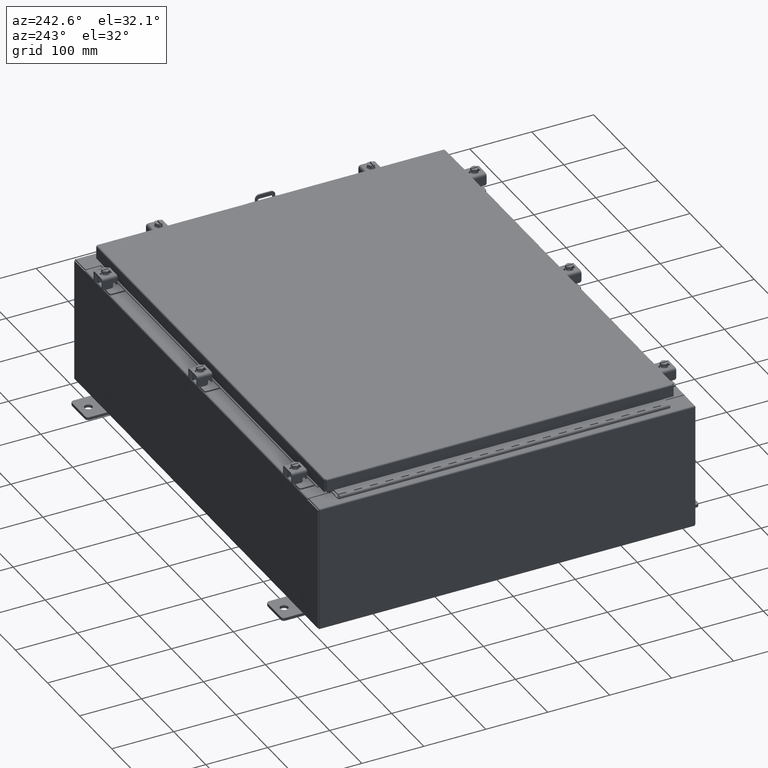
[diagram: clean part render]
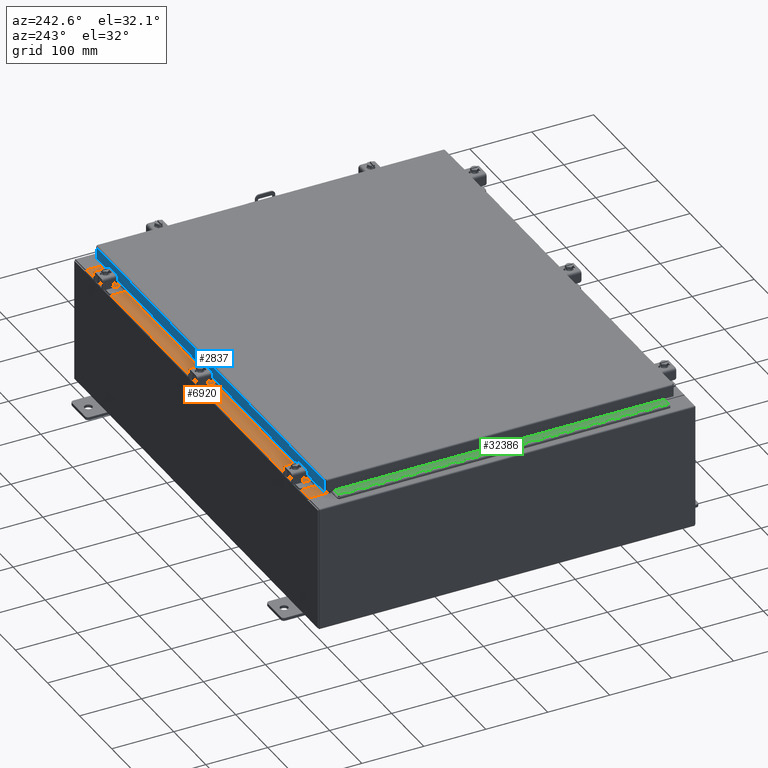
[diagram: same view with three faces highlighted in distinct colors, each labeled with its STEP entity id]
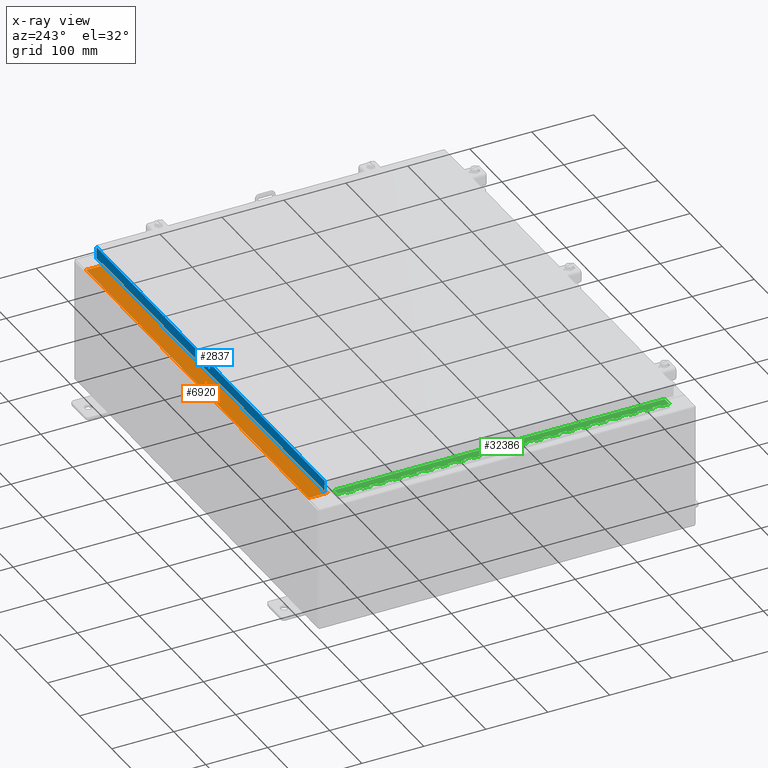
[diagram: x-ray of the same camera — body ghosted, the three highlighted faces saturated]
A machine part, auxiliary view with three faces highlighted in distinct colors.
The next image is the same camera in x-ray (body ghosted, the three faces saturated) — at least one of them is partly hidden behind the body in this view.
Their STEP definitions:

[orange] entity #6920 — the highlighted planar face has unit normal (0, 0, 1).
#652 = VECTOR ( 'NONE', #22955, 39.37007874015748100 ) ;
#1883 = CARTESIAN_POINT ( 'NONE',  ( 0.0000000000000000000, 1.425992975200418500E-014, 4.000000000000000000 ) ) ;
#4395 = DIRECTION ( 'NONE',  ( 0.0000000000000000000, 3.566381192773190000E-015, 1.000000000000000000 ) ) ;
#5611 = AXIS2_PLACEMENT_3D ( 'NONE', #1883, #4395, #22013 ) ;
#6423 = CARTESIAN_POINT ( 'NONE',  ( -13.63719999999999800, -0.07469999999999973900, 4.000000000000000000 ) ) ;
#6920 = ADVANCED_FACE ( 'NONE', ( #24083 ), #19454, .T. ) ;
#7188 = VERTEX_POINT ( 'NONE', #12847 ) ;
#7303 = LINE ( 'NONE', #7864, #652 ) ;
#7864 = CARTESIAN_POINT ( 'NONE',  ( 13.63720000000000400, -1.300299999999999800, 4.000000000000004400 ) ) ;
#8309 = CARTESIAN_POINT ( 'NONE',  ( 13.63720000000000400, -1.287299999999999900, 4.000000000000004400 ) ) ;
#8941 = DIRECTION ( 'NONE',  ( -0.0000000000000000000, 1.000000000000000000, -3.566381192773190000E-015 ) ) ;
#9105 = VECTOR ( 'NONE', #8941, 39.37007874015748100 ) ;
#9790 = VERTEX_POINT ( 'NONE', #8309 ) ;
#10670 = ORIENTED_EDGE ( 'NONE', *, *, #26959, .F. ) ;
#11139 = DIRECTION ( 'NONE',  ( -1.000000000000000000, 0.0000000000000000000, 0.0000000000000000000 ) ) ;
#12847 = CARTESIAN_POINT ( 'NONE',  ( 13.63720000000000400, -0.08769999999999965300, 4.000000000000000000 ) ) ;
#13478 = CARTESIAN_POINT ( 'NONE',  ( -13.63719999999999800, -0.08770000000000000000, 4.000000000000000000 ) ) ;
#14699 = VERTEX_POINT ( 'NONE', #13478 ) ;
#15131 = EDGE_CURVE ( 'NONE', #7188, #9790, #7303, .T. ) ;
#15764 = LINE ( 'NONE', #6423, #9105 ) ;
#15849 = VECTOR ( 'NONE', #11139, 39.37007874015748100 ) ;
#17206 = EDGE_CURVE ( 'NONE', #7188, #14699, #24688, .T. ) ;
#18114 = VERTEX_POINT ( 'NONE', #24829 ) ;
#19454 = PLANE ( 'NONE',  #5611 ) ;
#19603 = CARTESIAN_POINT ( 'NONE',  ( -1.756834753793995900E-018, -0.08770000000000000000, 4.000000000000000900 ) ) ;
#20675 = EDGE_LOOP ( 'NONE', ( #10670, #22113, #32286, #26658 ) ) ;
#21808 = LINE ( 'NONE', #28689, #15849 ) ;
#22013 = DIRECTION ( 'NONE',  ( 0.0000000000000000000, -1.000000000000000000, 3.566381192773190000E-015 ) ) ;
#22113 = ORIENTED_EDGE ( 'NONE', *, *, #24669, .F. ) ;
#22955 = DIRECTION ( 'NONE',  ( -0.0000000000000000000, -1.000000000000000000, 3.566381192773190000E-015 ) ) ;
#24083 = FACE_OUTER_BOUND ( 'NONE', #20675, .T. ) ;
#24669 = EDGE_CURVE ( 'NONE', #9790, #18114, #21808, .T. ) ;
#24688 = LINE ( 'NONE', #19603, #30560 ) ;
#24829 = CARTESIAN_POINT ( 'NONE',  ( -13.63719999999999800, -1.287299999999999200, 4.000000000000004400 ) ) ;
#26658 = ORIENTED_EDGE ( 'NONE', *, *, #17206, .T. ) ;
#26959 = EDGE_CURVE ( 'NONE', #18114, #14699, #15764, .T. ) ;
#28689 = CARTESIAN_POINT ( 'NONE',  ( 13.63720000000000400, -1.287299999999999900, 4.000000000000003600 ) ) ;
#30560 = VECTOR ( 'NONE', #32118, 39.37007874015748100 ) ;
#32118 = DIRECTION ( 'NONE',  ( -1.000000000000000000, 2.003232330437526000E-017, -7.144290108027600900E-032 ) ) ;
#32286 = ORIENTED_EDGE ( 'NONE', *, *, #15131, .F. ) ;

[blue] entity #2837 — the highlighted planar face has unit normal (0, -1, -0).
#816 = DIRECTION ( 'NONE',  ( 1.000000000000000000, -0.0000000000000000000, 1.261330583805775800E-016 ) ) ;
#2108 = VECTOR ( 'NONE', #816, 39.37007874015748100 ) ;
#2413 = VECTOR ( 'NONE', #25703, 39.37007874015748100 ) ;
#2560 = CARTESIAN_POINT ( 'NONE',  ( -13.98915786437626500, 11.09399999999999900, -0.08770000000000115200 ) ) ;
#2656 = EDGE_CURVE ( 'NONE', #9721, #26998, #28348, .T. ) ;
#2837 = ADVANCED_FACE ( 'NONE', ( #32110 ), #13784, .F. ) ;
#2856 = AXIS2_PLACEMENT_3D ( 'NONE', #11395, #28948, #13897 ) ;
#2977 = ORIENTED_EDGE ( 'NONE', *, *, #10481, .F. ) ;
#3062 = VERTEX_POINT ( 'NONE', #15081 ) ;
#4248 = ORIENTED_EDGE ( 'NONE', *, *, #2656, .T. ) ;
#6306 = EDGE_CURVE ( 'NONE', #3062, #14914, #32341, .T. ) ;
#7556 = CARTESIAN_POINT ( 'NONE',  ( -14.07799999999999800, 11.09400000000000100, -0.8500000000000032000 ) ) ;
#9721 = VERTEX_POINT ( 'NONE', #13029 ) ;
#10481 = EDGE_CURVE ( 'NONE', #31581, #3062, #22187, .T. ) ;
#11395 = CARTESIAN_POINT ( 'NONE',  ( -3.944516902753746600E-030, 11.09399999999999900, 3.153347883512799900E-014 ) ) ;
#11591 = CARTESIAN_POINT ( 'NONE',  ( 13.98915786437627400, 11.09400000000000100, -0.8499999999999996400 ) ) ;
#11825 = ORIENTED_EDGE ( 'NONE', *, *, #15707, .F. ) ;
#13029 = CARTESIAN_POINT ( 'NONE',  ( 13.98915786437627400, 11.09399999999999900, -0.08770000000000224800 ) ) ;
#13308 = CARTESIAN_POINT ( 'NONE',  ( -14.07799999999999800, 11.09400000000000100, -0.8500000000000032000 ) ) ;
#13784 = PLANE ( 'NONE',  #2856 ) ;
#13897 = DIRECTION ( 'NONE',  ( 0.0000000000000000000, 2.818880942772347100E-015, -1.000000000000000000 ) ) ;
#14914 = VERTEX_POINT ( 'NONE', #21965 ) ;
#15081 = CARTESIAN_POINT ( 'NONE',  ( -13.23915786437626400, 11.09399999999999400, -0.8500000000000056400 ) ) ;
#15442 = EDGE_CURVE ( 'NONE', #17356, #31581, #31266, .T. ) ;
#15707 = EDGE_CURVE ( 'NONE', #9721, #17356, #19054, .T. ) ;
#17258 = ORIENTED_EDGE ( 'NONE', *, *, #20818, .F. ) ;
#17356 = VERTEX_POINT ( 'NONE', #2560 ) ;
#18074 = CARTESIAN_POINT ( 'NONE',  ( 13.98915786437627100, 11.09399999999999900, 3.153347883512799900E-014 ) ) ;
#18953 = CARTESIAN_POINT ( 'NONE',  ( -13.98915786437626500, 11.09400000000000100, -0.8500000000000032000 ) ) ;
#18968 = VECTOR ( 'NONE', #29725, 39.37007874015748100 ) ;
#19054 = LINE ( 'NONE', #23258, #24995 ) ;
#19717 = CARTESIAN_POINT ( 'NONE',  ( -13.98915786437626500, 11.09399999999999900, -0.07469999999999978000 ) ) ;
#19731 = LINE ( 'NONE', #7556, #26442 ) ;
#20818 = EDGE_CURVE ( 'NONE', #14914, #26998, #19731, .T. ) ;
#21965 = CARTESIAN_POINT ( 'NONE',  ( 13.23915786437627200, 11.09399999999999400, -0.8500000000000056400 ) ) ;
#22187 = LINE ( 'NONE', #13308, #2108 ) ;
#22275 = DIRECTION ( 'NONE',  ( -0.0000000000000000000, 2.818880942772347100E-015, -1.000000000000000000 ) ) ;
#23119 = EDGE_LOOP ( 'NONE', ( #11825, #4248, #17258, #25491, #2977, #30424 ) ) ;
#23258 = CARTESIAN_POINT ( 'NONE',  ( -14.07799999999999800, 11.09399999999999900, -0.08770000000000007000 ) ) ;
#24605 = VECTOR ( 'NONE', #22275, 39.37007874015748100 ) ;
#24995 = VECTOR ( 'NONE', #28257, 39.37007874015748100 ) ;
#25151 = DIRECTION ( 'NONE',  ( 1.000000000000000000, -0.0000000000000000000, 1.261330583805775800E-016 ) ) ;
#25491 = ORIENTED_EDGE ( 'NONE', *, *, #6306, .F. ) ;
#25703 = DIRECTION ( 'NONE',  ( 0.0000000000000000000, 2.818880942772347100E-015, -1.000000000000000000 ) ) ;
#26442 = VECTOR ( 'NONE', #25151, 39.37007874015748100 ) ;
#26998 = VERTEX_POINT ( 'NONE', #11591 ) ;
#27233 = CARTESIAN_POINT ( 'NONE',  ( -13.23915786437626400, 11.09399999999999400, -0.8500000000000056400 ) ) ;
#28257 = DIRECTION ( 'NONE',  ( -1.000000000000000000, -5.743565819211262900E-031, 7.762034361881697200E-017 ) ) ;
#28348 = LINE ( 'NONE', #18074, #2413 ) ;
#28948 = DIRECTION ( 'NONE',  ( 3.555540745226020000E-031, -1.000000000000000000, -2.818880942772347100E-015 ) ) ;
#29725 = DIRECTION ( 'NONE',  ( 1.000000000000000000, -0.0000000000000000000, -0.0000000000000000000 ) ) ;
#30424 = ORIENTED_EDGE ( 'NONE', *, *, #15442, .F. ) ;
#31266 = LINE ( 'NONE', #19717, #24605 ) ;
#31581 = VERTEX_POINT ( 'NONE', #18953 ) ;
#32110 = FACE_OUTER_BOUND ( 'NONE', #23119, .T. ) ;
#32341 = LINE ( 'NONE', #27233, #18968 ) ;

[green] entity #32386 — the highlighted planar face has unit normal (-0, -0, 1).
#23 = DIRECTION ( 'NONE',  ( -3.389037039080723100E-015, -1.000000000000000000, 0.0000000000000000000 ) ) ;
#56 = DIRECTION ( 'NONE',  ( 0.0000000000000000000, 0.0000000000000000000, 1.000000000000000000 ) ) ;
#79 = VERTEX_POINT ( 'NONE', #11323 ) ;
#98 = VECTOR ( 'NONE', #32406, 39.37007874015748100 ) ;
#196 = LINE ( 'NONE', #5729, #6057 ) ;
#227 = LINE ( 'NONE', #21262, #32029 ) ;
#376 = EDGE_CURVE ( 'NONE', #79, #24054, #24597, .T. ) ;
#379 = VERTEX_POINT ( 'NONE', #7458 ) ;
#400 = CARTESIAN_POINT ( 'NONE',  ( -0.6869999999999982800, 0.5504999999999997700, -9.500000000000000000 ) ) ;
#433 = CARTESIAN_POINT ( 'NONE',  ( -0.6869999999999978300, 0.6754999999999996600, -1.499999999999999800 ) ) ;
#472 = DIRECTION ( 'NONE',  ( 0.0000000000000000000, 0.0000000000000000000, 1.000000000000000000 ) ) ;
#511 = CARTESIAN_POINT ( 'NONE',  ( -0.6869999999999978300, 0.6754999999999996600, -14.49999999999999800 ) ) ;
#513 = VERTEX_POINT ( 'NONE', #30508 ) ;
#712 = VERTEX_POINT ( 'NONE', #13787 ) ;
#713 = CARTESIAN_POINT ( 'NONE',  ( -0.6869999999999982800, 0.5504999999999997700, -2.000000000000000000 ) ) ;
#781 = LINE ( 'NONE', #20731, #25934 ) ;
#862 = LINE ( 'NONE', #20971, #12634 ) ;
#865 = CARTESIAN_POINT ( 'NONE',  ( -0.6869999999999978300, 0.6754999999999996600, -21.00000000000000000 ) ) ;
#972 = LINE ( 'NONE', #23129, #14308 ) ;
#1145 = CARTESIAN_POINT ( 'NONE',  ( -0.6869999999999978300, 0.6754999999999996600, -1.000000000000000000 ) ) ;
#1225 = VERTEX_POINT ( 'NONE', #16834 ) ;
#1239 = CARTESIAN_POINT ( 'NONE',  ( -0.6869999999999978300, 0.6754999999999996600, -21.00000000000000000 ) ) ;
#1246 = VECTOR ( 'NONE', #56, 39.37007874015748100 ) ;
#1251 = CARTESIAN_POINT ( 'NONE',  ( -0.6869999999999978300, 0.6754999999999996600, -12.49999999999999800 ) ) ;
#1276 = EDGE_CURVE ( 'NONE', #10729, #2779, #26118, .T. ) ;
#1370 = CARTESIAN_POINT ( 'NONE',  ( -0.6869999999999982800, 0.5504999999999997700, -18.50000000000000000 ) ) ;
#1372 = CARTESIAN_POINT ( 'NONE',  ( -0.6869999999999973900, 0.8004999999999995500, -12.99999999999999800 ) ) ;
#1376 = VECTOR ( 'NONE', #12643, 39.37007874015748100 ) ;
#1380 = VERTEX_POINT ( 'NONE', #2454 ) ;
#1423 = EDGE_CURVE ( 'NONE', #8209, #24475, #22183, .T. ) ;
#1430 = ORIENTED_EDGE ( 'NONE', *, *, #21750, .F. ) ;
#1507 = VERTEX_POINT ( 'NONE', #5641 ) ;
#1519 = CARTESIAN_POINT ( 'NONE',  ( -0.6869999999999982800, 0.5504999999999997700, -11.50000000000000000 ) ) ;
#1529 = CARTESIAN_POINT ( 'NONE',  ( -0.6869999999999982800, 0.5504999999999997700, -9.000000000000000000 ) ) ;
#1540 = DIRECTION ( 'NONE',  ( 0.0000000000000000000, -0.0000000000000000000, -1.000000000000000000 ) ) ;
#1580 = DIRECTION ( 'NONE',  ( 0.0000000000000000000, -0.0000000000000000000, -1.000000000000000000 ) ) ;
#1614 = VERTEX_POINT ( 'NONE', #13416 ) ;
#1645 = LINE ( 'NONE', #15866, #26804 ) ;
#1733 = VERTEX_POINT ( 'NONE', #16260 ) ;
#1773 = LINE ( 'NONE', #1372, #7671 ) ;
#1794 = EDGE_CURVE ( 'NONE', #26939, #31734, #11902, .T. ) ;
#1800 = LINE ( 'NONE', #16191, #27746 ) ;
#1938 = CARTESIAN_POINT ( 'NONE',  ( -0.6869999999999978300, 0.6754999999999996600, -21.00000000000000000 ) ) ;
#1956 = DIRECTION ( 'NONE',  ( 0.0000000000000000000, -0.0000000000000000000, -1.000000000000000000 ) ) ;
#2012 = DIRECTION ( 'NONE',  ( 3.389037039080723100E-015, 1.000000000000000000, -0.0000000000000000000 ) ) ;
#2020 = LINE ( 'NONE', #2961, #22100 ) ;
#2033 = ORIENTED_EDGE ( 'NONE', *, *, #23609, .F. ) ;
#2039 = VERTEX_POINT ( 'NONE', #13078 ) ;
#2172 = ORIENTED_EDGE ( 'NONE', *, *, #5055, .F. ) ;
#2173 = EDGE_CURVE ( 'NONE', #17864, #2235, #22536, .T. ) ;
#2235 = VERTEX_POINT ( 'NONE', #31410 ) ;
#2401 = ORIENTED_EDGE ( 'NONE', *, *, #7018, .F. ) ;
#2449 = CARTESIAN_POINT ( 'NONE',  ( -0.6869999999999973900, 0.8004999999999995500, -0.5000000000000000000 ) ) ;
#2454 = CARTESIAN_POINT ( 'NONE',  ( -0.6869999999999978300, 0.6754999999999996600, -9.000000000000000000 ) ) ;
#2455 = VERTEX_POINT ( 'NONE', #7340 ) ;
#2526 = ORIENTED_EDGE ( 'NONE', *, *, #9353, .F. ) ;
#2602 = VECTOR ( 'NONE', #21884, 39.37007874015748100 ) ;
#2704 = VECTOR ( 'NONE', #26336, 39.37007874015748100 ) ;
#2705 = EDGE_CURVE ( 'NONE', #12238, #11594, #1645, .T. ) ;
#2748 = EDGE_CURVE ( 'NONE', #18402, #2235, #862, .T. ) ;
#2779 = VERTEX_POINT ( 'NONE', #6107 ) ;
#2870 = ORIENTED_EDGE ( 'NONE', *, *, #28009, .F. ) ;
#2898 = CARTESIAN_POINT ( 'NONE',  ( -0.6869999999999978300, 0.6754999999999996600, -5.000000000000000000 ) ) ;
#2903 = LINE ( 'NONE', #1239, #15463 ) ;
#2907 = VECTOR ( 'NONE', #26619, 39.37007874015748100 ) ;
#2961 = CARTESIAN_POINT ( 'NONE',  ( -0.6869999999999982800, 0.5504999999999997700, -3.500000000000000000 ) ) ;
#2992 = VERTEX_POINT ( 'NONE', #27315 ) ;
#3015 = VECTOR ( 'NONE', #15557, 39.37007874015748100 ) ;
#3074 = VECTOR ( 'NONE', #2012, 39.37007874015748100 ) ;
#3085 = ORIENTED_EDGE ( 'NONE', *, *, #2173, .T. ) ;
#3195 = DIRECTION ( 'NONE',  ( 3.389037039080723100E-015, 1.000000000000000000, -0.0000000000000000000 ) ) ;
#3202 = DIRECTION ( 'NONE',  ( -3.389037039080723100E-015, -1.000000000000000000, 0.0000000000000000000 ) ) ;
#3222 = LINE ( 'NONE', #24407, #29159 ) ;
#3276 = EDGE_CURVE ( 'NONE', #21090, #28404, #15168, .T. ) ;
#3292 = DIRECTION ( 'NONE',  ( 0.0000000000000000000, -0.0000000000000000000, -1.000000000000000000 ) ) ;
#3305 = CARTESIAN_POINT ( 'NONE',  ( -0.6869999999999982800, 0.5504999999999997700, -1.499999999999999800 ) ) ;
#3334 = ORIENTED_EDGE ( 'NONE', *, *, #30977, .T. ) ;
#3367 = DIRECTION ( 'NONE',  ( 3.369016658928398200E-015, 1.000000000000000000, 0.0000000000000000000 ) ) ;
#3497 = CARTESIAN_POINT ( 'NONE',  ( -0.6869999999999998300, 0.07549999999999991400, 0.0000000000000000000 ) ) ;
#3522 = DIRECTION ( 'NONE',  ( 3.389037039080723100E-015, 1.000000000000000000, -0.0000000000000000000 ) ) ;
#3549 = VECTOR ( 'NONE', #26409, 39.37007874015748100 ) ;
#3567 = CARTESIAN_POINT ( 'NONE',  ( -0.6869999999999978300, 0.6754999999999996600, -5.500000000000000000 ) ) ;
#3570 = VERTEX_POINT ( 'NONE', #17338 ) ;
#3645 = LINE ( 'NONE', #4939, #29584 ) ;
#3692 = LINE ( 'NONE', #9016, #17030 ) ;
#3792 = VERTEX_POINT ( 'NONE', #8909 ) ;
#3808 = VERTEX_POINT ( 'NONE', #24099 ) ;
#3816 = ORIENTED_EDGE ( 'NONE', *, *, #5692, .T. ) ;
#3819 = VERTEX_POINT ( 'NONE', #29220 ) ;
#3830 = VERTEX_POINT ( 'NONE', #24202 ) ;
#3993 = CARTESIAN_POINT ( 'NONE',  ( -0.6869999999999982800, 0.5504999999999997700, -4.500000000000000000 ) ) ;
#4096 = EDGE_CURVE ( 'NONE', #12378, #28245, #6494, .T. ) ;
#4121 = LINE ( 'NONE', #30357, #30061 ) ;
#4127 = VECTOR ( 'NONE', #10315, 39.37007874015748100 ) ;
#4142 = DIRECTION ( 'NONE',  ( 3.389037039080723100E-015, 1.000000000000000000, -0.0000000000000000000 ) ) ;
#4146 = EDGE_CURVE ( 'NONE', #29577, #22393, #17469, .T. ) ;
#4184 = VECTOR ( 'NONE', #18842, 39.37007874015748100 ) ;
#4226 = ORIENTED_EDGE ( 'NONE', *, *, #5477, .F. ) ;
#4279 = CARTESIAN_POINT ( 'NONE',  ( -0.6869999999999973900, 0.8004999999999995500, -14.00000000000000000 ) ) ;
#4320 = ORIENTED_EDGE ( 'NONE', *, *, #13380, .F. ) ;
#4354 = ORIENTED_EDGE ( 'NONE', *, *, #30456, .F. ) ;
#4404 = VERTEX_POINT ( 'NONE', #6122 ) ;
#4445 = VERTEX_POINT ( 'NONE', #28967 ) ;
#4508 = EDGE_CURVE ( 'NONE', #24717, #28529, #9277, .T. ) ;
#4517 = EDGE_CURVE ( 'NONE', #1733, #23282, #21882, .T. ) ;
#4561 = EDGE_CURVE ( 'NONE', #16801, #26397, #14368, .T. ) ;
#4611 = DIRECTION ( 'NONE',  ( 3.389037039080723100E-015, 1.000000000000000000, -0.0000000000000000000 ) ) ;
#4629 = DIRECTION ( 'NONE',  ( 0.0000000000000000000, 0.0000000000000000000, 1.000000000000000000 ) ) ;
#4676 = DIRECTION ( 'NONE',  ( 0.0000000000000000000, -0.0000000000000000000, -1.000000000000000000 ) ) ;
#4726 = VECTOR ( 'NONE', #5902, 39.37007874015748100 ) ;
#4747 = VECTOR ( 'NONE', #20050, 39.37007874015748100 ) ;
#4801 = VECTOR ( 'NONE', #18992, 39.37007874015748100 ) ;
#4857 = EDGE_CURVE ( 'NONE', #17498, #12178, #19865, .T. ) ;
#4912 = LINE ( 'NONE', #7524, #30854 ) ;
#4939 = CARTESIAN_POINT ( 'NONE',  ( -0.6869999999999982800, 0.5504999999999997700, -8.500000000000000000 ) ) ;
#4975 = ORIENTED_EDGE ( 'NONE', *, *, #5545, .F. ) ;
#5026 = CARTESIAN_POINT ( 'NONE',  ( -0.6869999999999978300, 0.6754999999999996600, -12.99999999999999800 ) ) ;
#5048 = LINE ( 'NONE', #7497, #10939 ) ;
#5055 = EDGE_CURVE ( 'NONE', #19191, #3792, #227, .T. ) ;
#5162 = EDGE_CURVE ( 'NONE', #3819, #12893, #23808, .T. ) ;
#5293 = DIRECTION ( 'NONE',  ( 0.0000000000000000000, 0.0000000000000000000, 1.000000000000000000 ) ) ;
#5328 = CARTESIAN_POINT ( 'NONE',  ( -0.6869999999999982800, 0.5504999999999997700, -16.00000000000000000 ) ) ;
#5375 = CARTESIAN_POINT ( 'NONE',  ( -0.6869999999999978300, 0.6754999999999996600, -6.000000000000000900 ) ) ;
#5477 = EDGE_CURVE ( 'NONE', #28245, #3808, #972, .T. ) ;
#5545 = EDGE_CURVE ( 'NONE', #3570, #1507, #196, .T. ) ;
#5577 = VERTEX_POINT ( 'NONE', #18335 ) ;
#5641 = CARTESIAN_POINT ( 'NONE',  ( -0.6869999999999978300, 0.6754999999999996600, -8.000000000000000000 ) ) ;
#5666 = CARTESIAN_POINT ( 'NONE',  ( -0.6869999999999973900, 0.8004999999999995500, -16.00000000000000000 ) ) ;
#5692 = EDGE_CURVE ( 'NONE', #3819, #12178, #2903, .T. ) ;
#5729 = CARTESIAN_POINT ( 'NONE',  ( -0.6869999999999973900, 0.8004999999999995500, -8.000000000000000000 ) ) ;
#5763 = DIRECTION ( 'NONE',  ( -3.389037039080723100E-015, -1.000000000000000000, 0.0000000000000000000 ) ) ;
#5899 = VERTEX_POINT ( 'NONE', #14817 ) ;
#5902 = DIRECTION ( 'NONE',  ( 0.0000000000000000000, 0.0000000000000000000, 1.000000000000000000 ) ) ;
#5977 = ORIENTED_EDGE ( 'NONE', *, *, #26405, .T. ) ;
#6057 = VECTOR ( 'NONE', #3195, 39.37007874015748100 ) ;
#6069 = EDGE_CURVE ( 'NONE', #4404, #19191, #19383, .T. ) ;
#6107 = CARTESIAN_POINT ( 'NONE',  ( -0.6869999999999978300, 0.6754999999999996600, -16.00000000000000000 ) ) ;
#6122 = CARTESIAN_POINT ( 'NONE',  ( -0.6869999999999978300, 0.6754999999999996600, -18.50000000000000000 ) ) ;
#6188 = DIRECTION ( 'NONE',  ( 0.0000000000000000000, -0.0000000000000000000, -1.000000000000000000 ) ) ;
#6222 = VERTEX_POINT ( 'NONE', #26911 ) ;
#6296 = CARTESIAN_POINT ( 'NONE',  ( -0.6869999999999982800, 0.5504999999999997700, -15.50000000000000000 ) ) ;
#6444 = VERTEX_POINT ( 'NONE', #22718 ) ;
#6494 = LINE ( 'NONE', #27585, #25775 ) ;
#6517 = DIRECTION ( 'NONE',  ( 0.0000000000000000000, -0.0000000000000000000, -1.000000000000000000 ) ) ;
#6664 = CARTESIAN_POINT ( 'NONE',  ( -0.6869999999999973900, 0.8004999999999995500, -17.50000000000000000 ) ) ;
#6805 = DIRECTION ( 'NONE',  ( 3.389037039080723100E-015, 1.000000000000000000, -0.0000000000000000000 ) ) ;
#6860 = LINE ( 'NONE', #16578, #14329 ) ;
#6869 = EDGE_CURVE ( 'NONE', #23867, #9892, #11486, .T. ) ;
#6939 = CARTESIAN_POINT ( 'NONE',  ( -0.6869999999999982800, 0.5504999999999997700, -0.5000000000000000000 ) ) ;
#6971 = EDGE_CURVE ( 'NONE', #8370, #6444, #14208, .T. ) ;
#7018 = EDGE_CURVE ( 'NONE', #13318, #17588, #26820, .T. ) ;
#7052 = CARTESIAN_POINT ( 'NONE',  ( -0.6869999999999973900, 0.8004999999999995500, -11.99999999999999800 ) ) ;
#7167 = DIRECTION ( 'NONE',  ( 0.0000000000000000000, -0.0000000000000000000, -1.000000000000000000 ) ) ;
#7178 = EDGE_CURVE ( 'NONE', #22512, #1733, #2020, .T. ) ;
#7291 = VECTOR ( 'NONE', #9104, 39.37007874015748100 ) ;
#7340 = CARTESIAN_POINT ( 'NONE',  ( -0.6869999999999982800, 0.5504999999999997700, -20.50000000000000400 ) ) ;
#7365 = EDGE_CURVE ( 'NONE', #12367, #3570, #25628, .T. ) ;
#7458 = CARTESIAN_POINT ( 'NONE',  ( -0.6869999999999982800, 0.5504999999999997700, -9.500000000000000000 ) ) ;
#7497 = CARTESIAN_POINT ( 'NONE',  ( -0.6869999999999978300, 0.6754999999999996600, -21.00000000000000000 ) ) ;
#7524 = CARTESIAN_POINT ( 'NONE',  ( -0.6869999999999973900, 0.8004999999999995500, -10.50000000000000000 ) ) ;
#7542 = CARTESIAN_POINT ( 'NONE',  ( -0.6869999999999982800, 0.5504999999999997700, -17.50000000000000000 ) ) ;
#7568 = LINE ( 'NONE', #6664, #25275 ) ;
#7571 = LINE ( 'NONE', #19738, #23332 ) ;
#7649 = VECTOR ( 'NONE', #3522, 39.37007874015748100 ) ;
#7671 = VECTOR ( 'NONE', #24004, 39.37007874015748100 ) ;
#7674 = CARTESIAN_POINT ( 'NONE',  ( -0.6869999999999982800, 0.5504999999999997700, -20.00000000000000000 ) ) ;
#7700 = ORIENTED_EDGE ( 'NONE', *, *, #7365, .F. ) ;
#7722 = VERTEX_POINT ( 'NONE', #13041 ) ;
#7731 = VECTOR ( 'NONE', #11824, 39.37007874015748100 ) ;
#7732 = VECTOR ( 'NONE', #28478, 39.37007874015748100 ) ;
#7747 = ORIENTED_EDGE ( 'NONE', *, *, #6971, .F. ) ;
#7803 = CARTESIAN_POINT ( 'NONE',  ( -0.6869999999999978300, 0.6754999999999996600, -21.00000000000000000 ) ) ;
#7804 = EDGE_CURVE ( 'NONE', #16462, #2455, #12211, .T. ) ;
#7817 = EDGE_CURVE ( 'NONE', #4445, #23282, #18078, .T. ) ;
#7820 = ORIENTED_EDGE ( 'NONE', *, *, #28627, .F. ) ;
#7844 = DIRECTION ( 'NONE',  ( 0.0000000000000000000, 0.0000000000000000000, 1.000000000000000000 ) ) ;
#7878 = VERTEX_POINT ( 'NONE', #18607 ) ;
#7887 = LINE ( 'NONE', #4279, #27932 ) ;
#7951 = LINE ( 'NONE', #14896, #28762 ) ;
#7964 = CARTESIAN_POINT ( 'NONE',  ( -0.6869999999999978300, 0.6754999999999996600, -21.00000000000000000 ) ) ;
#8047 = DIRECTION ( 'NONE',  ( 0.0000000000000000000, -0.0000000000000000000, -1.000000000000000000 ) ) ;
#8196 = DIRECTION ( 'NONE',  ( -3.389037039080723100E-015, -1.000000000000000000, 0.0000000000000000000 ) ) ;
#8209 = VERTEX_POINT ( 'NONE', #17706 ) ;
#8266 = VECTOR ( 'NONE', #22992, 39.37007874015748100 ) ;
#8325 = CARTESIAN_POINT ( 'NONE',  ( -0.6869999999999982800, 0.5504999999999997700, -16.50000000000000000 ) ) ;
#8344 = VECTOR ( 'NONE', #4611, 39.37007874015748100 ) ;
#8370 = VERTEX_POINT ( 'NONE', #30900 ) ;
#8439 = DIRECTION ( 'NONE',  ( 3.389037039080723100E-015, 1.000000000000000000, -0.0000000000000000000 ) ) ;
#8465 = ORIENTED_EDGE ( 'NONE', *, *, #22710, .F. ) ;
#8504 = ORIENTED_EDGE ( 'NONE', *, *, #10450, .F. ) ;
#8561 = CARTESIAN_POINT ( 'NONE',  ( -0.6869999999999978300, 0.6754999999999996600, -17.50000000000000000 ) ) ;
#8588 = VERTEX_POINT ( 'NONE', #26743 ) ;
#8616 = VECTOR ( 'NONE', #5763, 39.37007874015748100 ) ;
#8663 = EDGE_CURVE ( 'NONE', #17593, #9645, #21209, .T. ) ;
#8682 = DIRECTION ( 'NONE',  ( 0.0000000000000000000, 0.0000000000000000000, 1.000000000000000000 ) ) ;
#8737 = VECTOR ( 'NONE', #23168, 39.37007874015748100 ) ;
#8775 = DIRECTION ( 'NONE',  ( -3.389037039080723100E-015, -1.000000000000000000, 0.0000000000000000000 ) ) ;
#8794 = VECTOR ( 'NONE', #12464, 39.37007874015748100 ) ;
#8797 = LINE ( 'NONE', #18236, #28053 ) ;
#8820 = CARTESIAN_POINT ( 'NONE',  ( -0.6869999999999978300, 0.6754999999999996600, -21.00000000000000000 ) ) ;
#8835 = VECTOR ( 'NONE', #16598, 39.37007874015748100 ) ;
#8906 = EDGE_CURVE ( 'NONE', #5577, #3830, #14877, .T. ) ;
#8909 = CARTESIAN_POINT ( 'NONE',  ( -0.6869999999999982800, 0.5504999999999997700, -19.00000000000000000 ) ) ;
#8958 = LINE ( 'NONE', #8988, #21563 ) ;
#8988 = CARTESIAN_POINT ( 'NONE',  ( -0.6869999999999973900, 0.8004999999999995500, -9.000000000000000000 ) ) ;
#9011 = EDGE_CURVE ( 'NONE', #28404, #5899, #17607, .T. ) ;
#9016 = CARTESIAN_POINT ( 'NONE',  ( -0.6869999999999978300, 0.6754999999999996600, -21.00000000000000000 ) ) ;
#9060 = EDGE_CURVE ( 'NONE', #12238, #22280, #9378, .T. ) ;
#9104 = DIRECTION ( 'NONE',  ( 3.389037039080723100E-015, 1.000000000000000000, -0.0000000000000000000 ) ) ;
#9119 = CARTESIAN_POINT ( 'NONE',  ( -0.6869999999999982800, 0.5504999999999997700, -7.499999999999999100 ) ) ;
#9181 = ORIENTED_EDGE ( 'NONE', *, *, #5162, .F. ) ;
#9240 = EDGE_CURVE ( 'NONE', #2455, #11594, #12119, .T. ) ;
#9277 = LINE ( 'NONE', #14132, #28518 ) ;
#9296 = LINE ( 'NONE', #16761, #2602 ) ;
#9353 = EDGE_CURVE ( 'NONE', #22422, #1380, #8958, .T. ) ;
#9378 = LINE ( 'NONE', #28544, #21979 ) ;
#9480 = ORIENTED_EDGE ( 'NONE', *, *, #6869, .F. ) ;
#9492 = EDGE_CURVE ( 'NONE', #18359, #32504, #25101, .T. ) ;
#9516 = ORIENTED_EDGE ( 'NONE', *, *, #1794, .T. ) ;
#9631 = ORIENTED_EDGE ( 'NONE', *, *, #11518, .T. ) ;
#9645 = VERTEX_POINT ( 'NONE', #5026 ) ;
#9662 = CARTESIAN_POINT ( 'NONE',  ( -0.6870000000000022800, -0.6245000000000003900, -21.00000000000000000 ) ) ;
#9699 = VERTEX_POINT ( 'NONE', #433 ) ;
#9730 = ORIENTED_EDGE ( 'NONE', *, *, #32289, .F. ) ;
#9766 = VECTOR ( 'NONE', #6517, 39.37007874015748100 ) ;
#9804 = CARTESIAN_POINT ( 'NONE',  ( -0.6869999999999978300, 0.6754999999999996600, -11.00000000000000000 ) ) ;
#9840 = CARTESIAN_POINT ( 'NONE',  ( -0.6869999999999978300, 0.6754999999999996600, -21.00000000000000000 ) ) ;
#9865 = DIRECTION ( 'NONE',  ( -3.389037039080723100E-015, -1.000000000000000000, 0.0000000000000000000 ) ) ;
#9892 = VERTEX_POINT ( 'NONE', #11154 ) ;
#9937 = ORIENTED_EDGE ( 'NONE', *, *, #22025, .F. ) ;
#9966 = VERTEX_POINT ( 'NONE', #11482 ) ;
#10196 = CARTESIAN_POINT ( 'NONE',  ( -0.6869999999999982800, 0.5504999999999997700, -14.00000000000000000 ) ) ;
#10315 = DIRECTION ( 'NONE',  ( 0.0000000000000000000, 0.0000000000000000000, 1.000000000000000000 ) ) ;
#10450 = EDGE_CURVE ( 'NONE', #31211, #22512, #8797, .T. ) ;
#10692 = ORIENTED_EDGE ( 'NONE', *, *, #4561, .F. ) ;
#10729 = VERTEX_POINT ( 'NONE', #29439 ) ;
#10748 = DIRECTION ( 'NONE',  ( -3.389037039080723100E-015, -1.000000000000000000, 0.0000000000000000000 ) ) ;
#10836 = VECTOR ( 'NONE', #13356, 39.37007874015748100 ) ;
#10839 = CARTESIAN_POINT ( 'NONE',  ( -0.6869999999999982800, 0.5504999999999997700, -14.99999999999999800 ) ) ;
#10840 = DIRECTION ( 'NONE',  ( -3.389037039080723100E-015, -1.000000000000000000, 0.0000000000000000000 ) ) ;
#10875 = LINE ( 'NONE', #11293, #4184 ) ;
#10882 = EDGE_CURVE ( 'NONE', #24475, #22422, #3645, .T. ) ;
#10883 = ORIENTED_EDGE ( 'NONE', *, *, #29031, .T. ) ;
#10923 = DIRECTION ( 'NONE',  ( 0.0000000000000000000, 0.0000000000000000000, 1.000000000000000000 ) ) ;
#10939 = VECTOR ( 'NONE', #17574, 39.37007874015748100 ) ;
#11016 = ORIENTED_EDGE ( 'NONE', *, *, #23341, .F. ) ;
#11154 = CARTESIAN_POINT ( 'NONE',  ( -0.6869999999999978300, 0.6754999999999996600, -20.00000000000000000 ) ) ;
#11174 = ORIENTED_EDGE ( 'NONE', *, *, #26504, .F. ) ;
#11207 = EDGE_CURVE ( 'NONE', #26227, #379, #15795, .T. ) ;
#11290 = VECTOR ( 'NONE', #27010, 39.37007874015748100 ) ;
#11293 = CARTESIAN_POINT ( 'NONE',  ( -0.6869999999999978300, 0.6754999999999996600, -21.00000000000000000 ) ) ;
#11323 = CARTESIAN_POINT ( 'NONE',  ( -0.6869999999999978300, 0.6754999999999996600, -6.499999999999999100 ) ) ;
#11325 = EDGE_CURVE ( 'NONE', #29577, #22684, #7568, .T. ) ;
#11380 = CARTESIAN_POINT ( 'NONE',  ( -0.6869999999999982800, 0.5504999999999997700, -6.499999999999999100 ) ) ;
#11448 = LINE ( 'NONE', #2449, #4747 ) ;
#11482 = CARTESIAN_POINT ( 'NONE',  ( -0.6869999999999982800, 0.5504999999999997700, -0.5000000000000000000 ) ) ;
#11486 = LINE ( 'NONE', #29229, #19742 ) ;
#11518 = EDGE_CURVE ( 'NONE', #13318, #27872, #13819, .T. ) ;
#11522 = DIRECTION ( 'NONE',  ( 3.389037039080723100E-015, 1.000000000000000000, -0.0000000000000000000 ) ) ;
#11594 = VERTEX_POINT ( 'NONE', #30717 ) ;
#11665 = DIRECTION ( 'NONE',  ( 3.389037039080723100E-015, 1.000000000000000000, -0.0000000000000000000 ) ) ;
#11773 = ORIENTED_EDGE ( 'NONE', *, *, #20809, .T. ) ;
#11815 = VECTOR ( 'NONE', #13943, 39.37007874015748100 ) ;
#11824 = DIRECTION ( 'NONE',  ( 3.369016658928398200E-015, 1.000000000000000000, 0.0000000000000000000 ) ) ;
#11902 = LINE ( 'NONE', #19685, #25305 ) ;
#12070 = VECTOR ( 'NONE', #28900, 39.37007874015748100 ) ;
#12119 = LINE ( 'NONE', #21653, #24705 ) ;
#12177 = EDGE_CURVE ( 'NONE', #23543, #2039, #22469, .T. ) ;
#12178 = VERTEX_POINT ( 'NONE', #20368 ) ;
#12195 = PLANE ( 'NONE',  #19470 ) ;
#12211 = LINE ( 'NONE', #25918, #24808 ) ;
#12230 = CARTESIAN_POINT ( 'NONE',  ( -0.6869999999999982800, 0.5504999999999997700, -12.99999999999999800 ) ) ;
#12238 = VERTEX_POINT ( 'NONE', #15599 ) ;
#12239 = VECTOR ( 'NONE', #28642, 39.37007874015748100 ) ;
#12283 = ORIENTED_EDGE ( 'NONE', *, *, #18021, .F. ) ;
#12367 = VERTEX_POINT ( 'NONE', #9119 ) ;
#12378 = VERTEX_POINT ( 'NONE', #19669 ) ;
#12413 = CARTESIAN_POINT ( 'NONE',  ( -0.6869999999999978300, 0.6754999999999996600, -3.500000000000000000 ) ) ;
#12464 = DIRECTION ( 'NONE',  ( -3.389037039080723100E-015, -1.000000000000000000, 0.0000000000000000000 ) ) ;
#12488 = CARTESIAN_POINT ( 'NONE',  ( -0.6869999999999973900, 0.8004999999999995500, -15.50000000000000000 ) ) ;
#12527 = DIRECTION ( 'NONE',  ( 0.0000000000000000000, -0.0000000000000000000, -1.000000000000000000 ) ) ;
#12542 = VERTEX_POINT ( 'NONE', #5375 ) ;
#12592 = DIRECTION ( 'NONE',  ( -3.389037039080723100E-015, -1.000000000000000000, 0.0000000000000000000 ) ) ;
#12634 = VECTOR ( 'NONE', #8439, 39.37007874015748100 ) ;
#12640 = LINE ( 'NONE', #11380, #31102 ) ;
#12643 = DIRECTION ( 'NONE',  ( 0.0000000000000000000, -0.0000000000000000000, -1.000000000000000000 ) ) ;
#12762 = CARTESIAN_POINT ( 'NONE',  ( -0.6869999999999978300, 0.6754999999999996600, -21.00000000000000000 ) ) ;
#12832 = CARTESIAN_POINT ( 'NONE',  ( -0.6869999999999978300, 0.6754999999999996600, -21.00000000000000000 ) ) ;
#12869 = ORIENTED_EDGE ( 'NONE', *, *, #13246, .F. ) ;
#12893 = VERTEX_POINT ( 'NONE', #19410 ) ;
#12989 = VERTEX_POINT ( 'NONE', #22193 ) ;
#13001 = DIRECTION ( 'NONE',  ( 0.0000000000000000000, 0.0000000000000000000, 1.000000000000000000 ) ) ;
#13036 = CARTESIAN_POINT ( 'NONE',  ( -0.6869999999999982800, 0.5504999999999997700, -5.000000000000000000 ) ) ;
#13041 = CARTESIAN_POINT ( 'NONE',  ( -0.6869999999999982800, 0.5504999999999997700, -17.99999999999999600 ) ) ;
#13078 = CARTESIAN_POINT ( 'NONE',  ( -0.6869999999999978300, 0.6754999999999996600, -11.99999999999999800 ) ) ;
#13161 = CARTESIAN_POINT ( 'NONE',  ( -0.6869999999999982800, 0.5504999999999997700, -14.49999999999999800 ) ) ;
#13246 = EDGE_CURVE ( 'NONE', #10729, #25693, #781, .T. ) ;
#13281 = EDGE_CURVE ( 'NONE', #28529, #2779, #19215, .T. ) ;
#13306 = VECTOR ( 'NONE', #472, 39.37007874015748100 ) ;
#13318 = VERTEX_POINT ( 'NONE', #15955 ) ;
#13352 = LINE ( 'NONE', #13161, #18434 ) ;
#13356 = DIRECTION ( 'NONE',  ( 0.0000000000000000000, -0.0000000000000000000, -1.000000000000000000 ) ) ;
#13380 = EDGE_CURVE ( 'NONE', #17593, #18359, #29427, .T. ) ;
#13416 = CARTESIAN_POINT ( 'NONE',  ( -0.6869999999999982800, 0.5504999999999997700, -12.49999999999999800 ) ) ;
#13589 = CARTESIAN_POINT ( 'NONE',  ( -0.6869999999999982800, 0.5504999999999997700, -7.499999999999999100 ) ) ;
#13592 = ORIENTED_EDGE ( 'NONE', *, *, #17644, .T. ) ;
#13609 = EDGE_CURVE ( 'NONE', #3808, #2039, #22378, .T. ) ;
#13692 = VECTOR ( 'NONE', #10923, 39.37007874015748100 ) ;
#13787 = CARTESIAN_POINT ( 'NONE',  ( -0.6869999999999982800, 0.5504999999999997700, -1.000000000000000000 ) ) ;
#13819 = LINE ( 'NONE', #9840, #19727 ) ;
#13943 = DIRECTION ( 'NONE',  ( 3.389037039080723100E-015, 1.000000000000000000, -0.0000000000000000000 ) ) ;
#13965 = LINE ( 'NONE', #26711, #7291 ) ;
#14132 = CARTESIAN_POINT ( 'NONE',  ( -0.6869999999999982800, 0.5504999999999997700, -15.50000000000000000 ) ) ;
#14208 = LINE ( 'NONE', #22230, #8344 ) ;
#14308 = VECTOR ( 'NONE', #8047, 39.37007874015748100 ) ;
#14329 = VECTOR ( 'NONE', #1580, 39.37007874015748100 ) ;
#14368 = LINE ( 'NONE', #24270, #20293 ) ;
#14443 = CARTESIAN_POINT ( 'NONE',  ( -0.6869999999999978300, 0.6754999999999996600, -7.000000000000000000 ) ) ;
#14578 = EDGE_CURVE ( 'NONE', #7722, #6222, #16357, .T. ) ;
#14660 = CARTESIAN_POINT ( 'NONE',  ( -0.6869999999999978300, 0.6754999999999996600, -2.999999999999999600 ) ) ;
#14712 = DIRECTION ( 'NONE',  ( 3.369016658928398200E-015, 1.000000000000000000, 0.0000000000000000000 ) ) ;
#14744 = ORIENTED_EDGE ( 'NONE', *, *, #26726, .F. ) ;
#14784 = EDGE_CURVE ( 'NONE', #16462, #9892, #10875, .T. ) ;
#14817 = CARTESIAN_POINT ( 'NONE',  ( -0.6869999999999982800, 0.5504999999999997700, -6.000000000000000900 ) ) ;
#14877 = LINE ( 'NONE', #30533, #13306 ) ;
#14896 = CARTESIAN_POINT ( 'NONE',  ( -0.6869999999999978300, 0.6754999999999996600, -21.00000000000000000 ) ) ;
#14902 = EDGE_CURVE ( 'NONE', #22280, #3830, #21904, .T. ) ;
#15060 = CARTESIAN_POINT ( 'NONE',  ( -0.6869999999999978300, 0.6754999999999996600, -21.00000000000000000 ) ) ;
#15168 = LINE ( 'NONE', #25985, #7732 ) ;
#15267 = LINE ( 'NONE', #28378, #13692 ) ;
#15387 = LINE ( 'NONE', #20630, #8737 ) ;
#15409 = CARTESIAN_POINT ( 'NONE',  ( -0.6869999999999982800, 0.5504999999999997700, -8.500000000000000000 ) ) ;
#15441 = VERTEX_POINT ( 'NONE', #14660 ) ;
#15463 = VECTOR ( 'NONE', #21335, 39.37007874015748100 ) ;
#15490 = ORIENTED_EDGE ( 'NONE', *, *, #12177, .T. ) ;
#15557 = DIRECTION ( 'NONE',  ( 3.389037039080723100E-015, 1.000000000000000000, -0.0000000000000000000 ) ) ;
#15599 = CARTESIAN_POINT ( 'NONE',  ( -0.6869999999999998300, 0.07549999999999991400, -21.00000000000000000 ) ) ;
#15795 = LINE ( 'NONE', #26367, #28381 ) ;
#15797 = VECTOR ( 'NONE', #16948, 39.37007874015748100 ) ;
#15861 = EDGE_CURVE ( 'NONE', #30511, #9645, #1773, .T. ) ;
#15866 = CARTESIAN_POINT ( 'NONE',  ( -0.6870000000000022800, -0.6245000000000003900, -21.00000000000000000 ) ) ;
#15904 = EDGE_CURVE ( 'NONE', #8588, #7878, #6860, .T. ) ;
#15955 = CARTESIAN_POINT ( 'NONE',  ( -0.6869999999999978300, 0.6754999999999996600, -19.50000000000000000 ) ) ;
#15969 = ORIENTED_EDGE ( 'NONE', *, *, #8906, .T. ) ;
#15990 = ORIENTED_EDGE ( 'NONE', *, *, #3276, .F. ) ;
#16019 = ORIENTED_EDGE ( 'NONE', *, *, #13609, .F. ) ;
#16148 = EDGE_CURVE ( 'NONE', #12893, #2992, #26542, .T. ) ;
#16191 = CARTESIAN_POINT ( 'NONE',  ( -0.6869999999999973900, 0.8004999999999995500, -6.000000000000000900 ) ) ;
#16253 = LINE ( 'NONE', #31635, #2907 ) ;
#16260 = CARTESIAN_POINT ( 'NONE',  ( -0.6869999999999982800, 0.5504999999999997700, -4.000000000000000000 ) ) ;
#16357 = LINE ( 'NONE', #30628, #3015 ) ;
#16390 = DIRECTION ( 'NONE',  ( 0.0000000000000000000, -0.0000000000000000000, -1.000000000000000000 ) ) ;
#16462 = VERTEX_POINT ( 'NONE', #19202 ) ;
#16578 = CARTESIAN_POINT ( 'NONE',  ( -0.6869999999999982800, 0.5504999999999997700, -10.50000000000000000 ) ) ;
#16598 = DIRECTION ( 'NONE',  ( -3.389037039080723100E-015, -1.000000000000000000, 0.0000000000000000000 ) ) ;
#16761 = CARTESIAN_POINT ( 'NONE',  ( -0.6869999999999973900, 0.8004999999999995500, -12.49999999999999800 ) ) ;
#16801 = VERTEX_POINT ( 'NONE', #13036 ) ;
#16811 = ORIENTED_EDGE ( 'NONE', *, *, #20466, .T. ) ;
#16821 = ORIENTED_EDGE ( 'NONE', *, *, #27686, .F. ) ;
#16834 = CARTESIAN_POINT ( 'NONE',  ( -0.6869999999999978300, 0.6754999999999996600, -10.50000000000000000 ) ) ;
#16836 = VECTOR ( 'NONE', #12592, 39.37007874015748100 ) ;
#16948 = DIRECTION ( 'NONE',  ( 0.0000000000000000000, 0.0000000000000000000, 1.000000000000000000 ) ) ;
#16970 = CARTESIAN_POINT ( 'NONE',  ( -0.6869999999999982800, 0.5504999999999997700, -13.50000000000000000 ) ) ;
#17030 = VECTOR ( 'NONE', #24090, 39.37007874015748100 ) ;
#17088 = CARTESIAN_POINT ( 'NONE',  ( -0.6869999999999982800, 0.5504999999999997700, -17.00000000000000000 ) ) ;
#17266 = LINE ( 'NONE', #20114, #29871 ) ;
#17338 = CARTESIAN_POINT ( 'NONE',  ( -0.6869999999999982800, 0.5504999999999997700, -8.000000000000000000 ) ) ;
#17364 = LINE ( 'NONE', #7964, #29174 ) ;
#17449 = ORIENTED_EDGE ( 'NONE', *, *, #13281, .F. ) ;
#17469 = LINE ( 'NONE', #7803, #4127 ) ;
#17498 = VERTEX_POINT ( 'NONE', #713 ) ;
#17574 = DIRECTION ( 'NONE',  ( 0.0000000000000000000, 0.0000000000000000000, 1.000000000000000000 ) ) ;
#17588 = VERTEX_POINT ( 'NONE', #21132 ) ;
#17593 = VERTEX_POINT ( 'NONE', #28674 ) ;
#17607 = LINE ( 'NONE', #30756, #30196 ) ;
#17644 = EDGE_CURVE ( 'NONE', #26412, #26821, #18721, .T. ) ;
#17684 = LINE ( 'NONE', #31528, #11815 ) ;
#17692 = EDGE_LOOP ( 'NONE', ( #27291, #22764, #25468, #29152, #20931, #9480, #19167, #2401, #9631, #9937, #2172, #22805, #16811, #20996, #9730, #32485, #23515, #2033, #29109, #12869, #29512, #17449, #17775, #8465, #3085, #23934, #2870, #23513, #13592, #16821, #28343, #4320, #26643, #23255, #11174, #12283, #15490, #16019, #4226, #29189, #31317, #1430, #27064, #27948, #30655, #7747, #11016, #31590, #5977, #2526, #28994, #23905, #23715, #4975, #7700, #7820, #9516, #31031, #27385, #30650, #19392, #19714, #28838, #15990, #10883, #10692, #18683, #14744, #23699, #23292, #18813, #8504, #11773, #19783, #20108, #9181, #3816, #17915, #30322, #25801, #3334, #26174, #4354, #25137, #15969, #25547 ) ) ;
#17706 = CARTESIAN_POINT ( 'NONE',  ( -0.6869999999999978300, 0.6754999999999996600, -8.500000000000000000 ) ) ;
#17716 = LINE ( 'NONE', #24771, #31101 ) ;
#17775 = ORIENTED_EDGE ( 'NONE', *, *, #4508, .F. ) ;
#17822 = DIRECTION ( 'NONE',  ( 0.0000000000000000000, -0.0000000000000000000, -1.000000000000000000 ) ) ;
#17864 = VERTEX_POINT ( 'NONE', #27708 ) ;
#17915 = ORIENTED_EDGE ( 'NONE', *, *, #4857, .F. ) ;
#18021 = EDGE_CURVE ( 'NONE', #23543, #1614, #9296, .T. ) ;
#18078 = LINE ( 'NONE', #865, #4726 ) ;
#18083 = VERTEX_POINT ( 'NONE', #17088 ) ;
#18192 = LINE ( 'NONE', #12762, #32360 ) ;
#18236 = CARTESIAN_POINT ( 'NONE',  ( -0.6869999999999973900, 0.8004999999999995500, -3.500000000000000000 ) ) ;
#18335 = CARTESIAN_POINT ( 'NONE',  ( -0.6869999999999978300, 0.6754999999999996600, -0.5000000000000000000 ) ) ;
#18359 = VERTEX_POINT ( 'NONE', #30723 ) ;
#18360 = VECTOR ( 'NONE', #1956, 39.37007874015748100 ) ;
#18402 = VERTEX_POINT ( 'NONE', #10839 ) ;
#18403 = EDGE_CURVE ( 'NONE', #25693, #18083, #30879, .T. ) ;
#18407 = VECTOR ( 'NONE', #28387, 39.37007874015748100 ) ;
#18434 = VECTOR ( 'NONE', #23203, 39.37007874015748100 ) ;
#18470 = CARTESIAN_POINT ( 'NONE',  ( -0.6869999999999982800, 0.5504999999999997700, -4.500000000000000000 ) ) ;
#18481 = EDGE_CURVE ( 'NONE', #5899, #12542, #1800, .T. ) ;
#18522 = DIRECTION ( 'NONE',  ( 0.0000000000000000000, 0.0000000000000000000, 1.000000000000000000 ) ) ;
#18543 = CARTESIAN_POINT ( 'NONE',  ( -0.6869999999999973900, 0.8004999999999995500, -2.999999999999999600 ) ) ;
#18607 = CARTESIAN_POINT ( 'NONE',  ( -0.6869999999999982800, 0.5504999999999997700, -11.00000000000000000 ) ) ;
#18683 = ORIENTED_EDGE ( 'NONE', *, *, #28827, .F. ) ;
#18712 = DIRECTION ( 'NONE',  ( 3.389037039080723100E-015, 1.000000000000000000, -0.0000000000000000000 ) ) ;
#18721 = LINE ( 'NONE', #8820, #12070 ) ;
#18813 = ORIENTED_EDGE ( 'NONE', *, *, #7178, .F. ) ;
#18842 = DIRECTION ( 'NONE',  ( 0.0000000000000000000, 0.0000000000000000000, 1.000000000000000000 ) ) ;
#18844 = EDGE_CURVE ( 'NONE', #1225, #8588, #4912, .T. ) ;
#18886 = EDGE_CURVE ( 'NONE', #17588, #23867, #4121, .T. ) ;
#18962 = CARTESIAN_POINT ( 'NONE',  ( -0.6869999999999978300, 0.6754999999999996600, -17.00000000000000000 ) ) ;
#18992 = DIRECTION ( 'NONE',  ( 3.389037039080723100E-015, 1.000000000000000000, -0.0000000000000000000 ) ) ;
#19167 = ORIENTED_EDGE ( 'NONE', *, *, #18886, .F. ) ;
#19179 = CARTESIAN_POINT ( 'NONE',  ( -0.6870000000000022800, -0.6245000000000003900, 0.0000000000000000000 ) ) ;
#19191 = VERTEX_POINT ( 'NONE', #1370 ) ;
#19202 = CARTESIAN_POINT ( 'NONE',  ( -0.6869999999999978300, 0.6754999999999996600, -20.50000000000000400 ) ) ;
#19215 = LINE ( 'NONE', #5666, #18407 ) ;
#19226 = LINE ( 'NONE', #400, #31806 ) ;
#19383 = LINE ( 'NONE', #20760, #31968 ) ;
#19392 = ORIENTED_EDGE ( 'NONE', *, *, #25095, .T. ) ;
#19410 = CARTESIAN_POINT ( 'NONE',  ( -0.6869999999999982800, 0.5504999999999997700, -2.500000000000000000 ) ) ;
#19455 = VECTOR ( 'NONE', #32003, 39.37007874015748100 ) ;
#19470 = AXIS2_PLACEMENT_3D ( 'NONE', #9662, #29748, #14712 ) ;
#19495 = CARTESIAN_POINT ( 'NONE',  ( -0.6869999999999978300, 0.6754999999999996600, -21.00000000000000000 ) ) ;
#19669 = CARTESIAN_POINT ( 'NONE',  ( -0.6869999999999978300, 0.6754999999999996600, -11.50000000000000000 ) ) ;
#19685 = CARTESIAN_POINT ( 'NONE',  ( -0.6869999999999978300, 0.6754999999999996600, -21.00000000000000000 ) ) ;
#19714 = ORIENTED_EDGE ( 'NONE', *, *, #18481, .F. ) ;
#19727 = VECTOR ( 'NONE', #27433, 39.37007874015748100 ) ;
#19738 = CARTESIAN_POINT ( 'NONE',  ( -0.6869999999999982800, 0.5504999999999997700, -12.49999999999999800 ) ) ;
#19742 = VECTOR ( 'NONE', #11665, 39.37007874015748100 ) ;
#19783 = ORIENTED_EDGE ( 'NONE', *, *, #30849, .F. ) ;
#19865 = LINE ( 'NONE', #20508, #25001 ) ;
#19988 = CARTESIAN_POINT ( 'NONE',  ( -0.6869999999999973900, 0.8004999999999995500, -6.499999999999999100 ) ) ;
#20050 = DIRECTION ( 'NONE',  ( -3.389037039080723100E-015, -1.000000000000000000, 0.0000000000000000000 ) ) ;
#20108 = ORIENTED_EDGE ( 'NONE', *, *, #16148, .F. ) ;
#20114 = CARTESIAN_POINT ( 'NONE',  ( -0.6869999999999973900, 0.8004999999999995500, -19.00000000000000000 ) ) ;
#20164 = DIRECTION ( 'NONE',  ( -3.389037039080723100E-015, -1.000000000000000000, 0.0000000000000000000 ) ) ;
#20217 = CARTESIAN_POINT ( 'NONE',  ( -0.6869999999999978300, 0.6754999999999996600, -19.00000000000000000 ) ) ;
#20260 = LINE ( 'NONE', #6939, #19455 ) ;
#20270 = CARTESIAN_POINT ( 'NONE',  ( -0.6869999999999973900, 0.8004999999999995500, -8.500000000000000000 ) ) ;
#20293 = VECTOR ( 'NONE', #24381, 39.37007874015748100 ) ;
#20368 = CARTESIAN_POINT ( 'NONE',  ( -0.6869999999999978300, 0.6754999999999996600, -2.000000000000000000 ) ) ;
#20466 = EDGE_CURVE ( 'NONE', #4404, #6222, #28386, .T. ) ;
#20508 = CARTESIAN_POINT ( 'NONE',  ( -0.6869999999999973900, 0.8004999999999995500, -2.000000000000000000 ) ) ;
#20563 = DIRECTION ( 'NONE',  ( 0.0000000000000000000, -0.0000000000000000000, -1.000000000000000000 ) ) ;
#20630 = CARTESIAN_POINT ( 'NONE',  ( -0.6869999999999973900, 0.8004999999999995500, -4.500000000000000000 ) ) ;
#20718 = CARTESIAN_POINT ( 'NONE',  ( -0.6869999999999973900, 0.8004999999999995500, -7.499999999999999100 ) ) ;
#20731 = CARTESIAN_POINT ( 'NONE',  ( -0.6869999999999973900, 0.8004999999999995500, -16.50000000000000000 ) ) ;
#20760 = CARTESIAN_POINT ( 'NONE',  ( -0.6869999999999973900, 0.8004999999999995500, -18.50000000000000000 ) ) ;
#20809 = EDGE_CURVE ( 'NONE', #31211, #15441, #7951, .T. ) ;
#20851 = LINE ( 'NONE', #12832, #8266 ) ;
#20931 = ORIENTED_EDGE ( 'NONE', *, *, #14784, .T. ) ;
#20971 = CARTESIAN_POINT ( 'NONE',  ( -0.6869999999999973900, 0.8004999999999995500, -14.99999999999999800 ) ) ;
#20996 = ORIENTED_EDGE ( 'NONE', *, *, #14578, .F. ) ;
#21022 = LINE ( 'NONE', #18543, #7649 ) ;
#21090 = VERTEX_POINT ( 'NONE', #3567 ) ;
#21132 = CARTESIAN_POINT ( 'NONE',  ( -0.6869999999999982800, 0.5504999999999997700, -19.50000000000000000 ) ) ;
#21155 = EDGE_CURVE ( 'NONE', #24054, #12989, #12640, .T. ) ;
#21209 = LINE ( 'NONE', #27059, #27107 ) ;
#21218 = CARTESIAN_POINT ( 'NONE',  ( -0.6869999999999978300, 0.6754999999999996600, -21.00000000000000000 ) ) ;
#21262 = CARTESIAN_POINT ( 'NONE',  ( -0.6869999999999982800, 0.5504999999999997700, -18.50000000000000000 ) ) ;
#21335 = DIRECTION ( 'NONE',  ( 0.0000000000000000000, 0.0000000000000000000, 1.000000000000000000 ) ) ;
#21436 = EDGE_CURVE ( 'NONE', #5577, #9966, #11448, .T. ) ;
#21563 = VECTOR ( 'NONE', #11522, 39.37007874015748100 ) ;
#21653 = CARTESIAN_POINT ( 'NONE',  ( -0.6869999999999982800, 0.5504999999999997700, -20.50000000000000400 ) ) ;
#21750 = EDGE_CURVE ( 'NONE', #7878, #30520, #23645, .T. ) ;
#21882 = LINE ( 'NONE', #26693, #27753 ) ;
#21884 = DIRECTION ( 'NONE',  ( -3.389037039080723100E-015, -1.000000000000000000, 0.0000000000000000000 ) ) ;
#21904 = LINE ( 'NONE', #19179, #7731 ) ;
#21979 = VECTOR ( 'NONE', #18522, 39.37007874015748100 ) ;
#22025 = EDGE_CURVE ( 'NONE', #3792, #27872, #17266, .T. ) ;
#22100 = VECTOR ( 'NONE', #20563, 39.37007874015748100 ) ;
#22183 = LINE ( 'NONE', #20270, #8794 ) ;
#22193 = CARTESIAN_POINT ( 'NONE',  ( -0.6869999999999982800, 0.5504999999999997700, -7.000000000000000000 ) ) ;
#22230 = CARTESIAN_POINT ( 'NONE',  ( -0.6869999999999973900, 0.8004999999999995500, -10.00000000000000000 ) ) ;
#22280 = VERTEX_POINT ( 'NONE', #3497 ) ;
#22378 = LINE ( 'NONE', #7052, #3074 ) ;
#22393 = VERTEX_POINT ( 'NONE', #18962 ) ;
#22396 = CARTESIAN_POINT ( 'NONE',  ( -0.6869999999999982800, 0.5504999999999997700, -5.500000000000000000 ) ) ;
#22422 = VERTEX_POINT ( 'NONE', #1529 ) ;
#22469 = LINE ( 'NONE', #22926, #29112 ) ;
#22512 = VERTEX_POINT ( 'NONE', #31926 ) ;
#22530 = DIRECTION ( 'NONE',  ( 0.0000000000000000000, 0.0000000000000000000, 1.000000000000000000 ) ) ;
#22536 = LINE ( 'NONE', #21218, #23323 ) ;
#22668 = DIRECTION ( 'NONE',  ( 3.389037039080723100E-015, 1.000000000000000000, -0.0000000000000000000 ) ) ;
#22684 = VERTEX_POINT ( 'NONE', #7542 ) ;
#22710 = EDGE_CURVE ( 'NONE', #17864, #24717, #30217, .T. ) ;
#22718 = CARTESIAN_POINT ( 'NONE',  ( -0.6869999999999978300, 0.6754999999999996600, -10.00000000000000000 ) ) ;
#22764 = ORIENTED_EDGE ( 'NONE', *, *, #2705, .T. ) ;
#22805 = ORIENTED_EDGE ( 'NONE', *, *, #6069, .F. ) ;
#22926 = CARTESIAN_POINT ( 'NONE',  ( -0.6869999999999978300, 0.6754999999999996600, -21.00000000000000000 ) ) ;
#22992 = DIRECTION ( 'NONE',  ( 0.0000000000000000000, 0.0000000000000000000, 1.000000000000000000 ) ) ;
#23060 = DIRECTION ( 'NONE',  ( 3.389037039080723100E-015, 1.000000000000000000, -0.0000000000000000000 ) ) ;
#23129 = CARTESIAN_POINT ( 'NONE',  ( -0.6869999999999982800, 0.5504999999999997700, -11.50000000000000000 ) ) ;
#23168 = DIRECTION ( 'NONE',  ( -3.389037039080723100E-015, -1.000000000000000000, 0.0000000000000000000 ) ) ;
#23176 = LINE ( 'NONE', #3993, #9766 ) ;
#23203 = DIRECTION ( 'NONE',  ( 0.0000000000000000000, -0.0000000000000000000, -1.000000000000000000 ) ) ;
#23255 = ORIENTED_EDGE ( 'NONE', *, *, #15861, .F. ) ;
#23282 = VERTEX_POINT ( 'NONE', #30348 ) ;
#23292 = ORIENTED_EDGE ( 'NONE', *, *, #4517, .F. ) ;
#23323 = VECTOR ( 'NONE', #8682, 39.37007874015748100 ) ;
#23332 = VECTOR ( 'NONE', #4676, 39.37007874015748100 ) ;
#23341 = EDGE_CURVE ( 'NONE', #379, #8370, #19226, .T. ) ;
#23489 = VERTEX_POINT ( 'NONE', #1145 ) ;
#23506 = CARTESIAN_POINT ( 'NONE',  ( -0.6869999999999982800, 0.5504999999999997700, -6.499999999999999100 ) ) ;
#23513 = ORIENTED_EDGE ( 'NONE', *, *, #29785, .F. ) ;
#23515 = ORIENTED_EDGE ( 'NONE', *, *, #4146, .T. ) ;
#23543 = VERTEX_POINT ( 'NONE', #1251 ) ;
#23609 = EDGE_CURVE ( 'NONE', #18083, #22393, #13965, .T. ) ;
#23645 = LINE ( 'NONE', #23889, #3549 ) ;
#23699 = ORIENTED_EDGE ( 'NONE', *, *, #7817, .T. ) ;
#23715 = ORIENTED_EDGE ( 'NONE', *, *, #27922, .T. ) ;
#23808 = LINE ( 'NONE', #29248, #8835 ) ;
#23815 = CARTESIAN_POINT ( 'NONE',  ( -0.6869999999999973900, 0.8004999999999995500, -13.50000000000000000 ) ) ;
#23867 = VERTEX_POINT ( 'NONE', #7674 ) ;
#23889 = CARTESIAN_POINT ( 'NONE',  ( -0.6869999999999973900, 0.8004999999999995500, -11.00000000000000000 ) ) ;
#23905 = ORIENTED_EDGE ( 'NONE', *, *, #1423, .F. ) ;
#23920 = CARTESIAN_POINT ( 'NONE',  ( -0.6869999999999978300, 0.6754999999999996600, -7.499999999999999100 ) ) ;
#23934 = ORIENTED_EDGE ( 'NONE', *, *, #2748, .F. ) ;
#24004 = DIRECTION ( 'NONE',  ( 3.389037039080723100E-015, 1.000000000000000000, -0.0000000000000000000 ) ) ;
#24054 = VERTEX_POINT ( 'NONE', #23506 ) ;
#24090 = DIRECTION ( 'NONE',  ( 0.0000000000000000000, 0.0000000000000000000, 1.000000000000000000 ) ) ;
#24099 = CARTESIAN_POINT ( 'NONE',  ( -0.6869999999999982800, 0.5504999999999997700, -11.99999999999999800 ) ) ;
#24202 = CARTESIAN_POINT ( 'NONE',  ( -0.6869999999999978300, 0.6754999999999996600, 0.0000000000000000000 ) ) ;
#24269 = DIRECTION ( 'NONE',  ( -3.389037039080723100E-015, -1.000000000000000000, 0.0000000000000000000 ) ) ;
#24270 = CARTESIAN_POINT ( 'NONE',  ( -0.6869999999999973900, 0.8004999999999995500, -5.000000000000000000 ) ) ;
#24381 = DIRECTION ( 'NONE',  ( 3.389037039080723100E-015, 1.000000000000000000, -0.0000000000000000000 ) ) ;
#24407 = CARTESIAN_POINT ( 'NONE',  ( -0.6869999999999982800, 0.5504999999999997700, -17.50000000000000000 ) ) ;
#24475 = VERTEX_POINT ( 'NONE', #15409 ) ;
#24597 = LINE ( 'NONE', #19988, #30458 ) ;
#24705 = VECTOR ( 'NONE', #1540, 39.37007874015748100 ) ;
#24717 = VERTEX_POINT ( 'NONE', #6296 ) ;
#24771 = CARTESIAN_POINT ( 'NONE',  ( -0.6869999999999982800, 0.5504999999999997700, -1.499999999999999800 ) ) ;
#24808 = VECTOR ( 'NONE', #10840, 39.37007874015748100 ) ;
#24879 = LINE ( 'NONE', #31520, #4801 ) ;
#25001 = VECTOR ( 'NONE', #23060, 39.37007874015748100 ) ;
#25095 = EDGE_CURVE ( 'NONE', #79, #12542, #18192, .T. ) ;
#25101 = LINE ( 'NONE', #16970, #18360 ) ;
#25137 = ORIENTED_EDGE ( 'NONE', *, *, #21436, .F. ) ;
#25275 = VECTOR ( 'NONE', #24269, 39.37007874015748100 ) ;
#25305 = VECTOR ( 'NONE', #4629, 39.37007874015748100 ) ;
#25468 = ORIENTED_EDGE ( 'NONE', *, *, #9240, .F. ) ;
#25547 = ORIENTED_EDGE ( 'NONE', *, *, #14902, .F. ) ;
#25628 = LINE ( 'NONE', #13589, #12239 ) ;
#25693 = VERTEX_POINT ( 'NONE', #27890 ) ;
#25775 = VECTOR ( 'NONE', #23, 39.37007874015748100 ) ;
#25801 = ORIENTED_EDGE ( 'NONE', *, *, #30998, .F. ) ;
#25918 = CARTESIAN_POINT ( 'NONE',  ( -0.6869999999999973900, 0.8004999999999995500, -20.50000000000000400 ) ) ;
#25934 = VECTOR ( 'NONE', #8196, 39.37007874015748100 ) ;
#25985 = CARTESIAN_POINT ( 'NONE',  ( -0.6869999999999973900, 0.8004999999999995500, -5.500000000000000000 ) ) ;
#26000 = CARTESIAN_POINT ( 'NONE',  ( -0.6869999999999978300, 0.6754999999999996600, -14.00000000000000000 ) ) ;
#26045 = FACE_OUTER_BOUND ( 'NONE', #17692, .T. ) ;
#26118 = LINE ( 'NONE', #19495, #31982 ) ;
#26174 = ORIENTED_EDGE ( 'NONE', *, *, #32203, .F. ) ;
#26227 = VERTEX_POINT ( 'NONE', #29813 ) ;
#26336 = DIRECTION ( 'NONE',  ( -3.389037039080723100E-015, -1.000000000000000000, 0.0000000000000000000 ) ) ;
#26367 = CARTESIAN_POINT ( 'NONE',  ( -0.6869999999999973900, 0.8004999999999995500, -9.500000000000000000 ) ) ;
#26397 = VERTEX_POINT ( 'NONE', #2898 ) ;
#26405 = EDGE_CURVE ( 'NONE', #26227, #1380, #17364, .T. ) ;
#26409 = DIRECTION ( 'NONE',  ( 3.389037039080723100E-015, 1.000000000000000000, -0.0000000000000000000 ) ) ;
#26412 = VERTEX_POINT ( 'NONE', #511 ) ;
#26504 = EDGE_CURVE ( 'NONE', #1614, #30511, #7571, .T. ) ;
#26542 = LINE ( 'NONE', #27705, #1376 ) ;
#26619 = DIRECTION ( 'NONE',  ( -3.389037039080723100E-015, -1.000000000000000000, 0.0000000000000000000 ) ) ;
#26643 = ORIENTED_EDGE ( 'NONE', *, *, #8663, .T. ) ;
#26693 = CARTESIAN_POINT ( 'NONE',  ( -0.6869999999999973900, 0.8004999999999995500, -4.000000000000000000 ) ) ;
#26711 = CARTESIAN_POINT ( 'NONE',  ( -0.6869999999999973900, 0.8004999999999995500, -17.00000000000000000 ) ) ;
#26726 = EDGE_CURVE ( 'NONE', #4445, #26829, #15387, .T. ) ;
#26743 = CARTESIAN_POINT ( 'NONE',  ( -0.6869999999999982800, 0.5504999999999997700, -10.50000000000000000 ) ) ;
#26804 = VECTOR ( 'NONE', #3367, 39.37007874015748100 ) ;
#26820 = LINE ( 'NONE', #27375, #98 ) ;
#26821 = VERTEX_POINT ( 'NONE', #26000 ) ;
#26829 = VERTEX_POINT ( 'NONE', #18470 ) ;
#26911 = CARTESIAN_POINT ( 'NONE',  ( -0.6869999999999978300, 0.6754999999999996600, -17.99999999999999600 ) ) ;
#26931 = DIRECTION ( 'NONE',  ( 0.0000000000000000000, -0.0000000000000000000, -1.000000000000000000 ) ) ;
#26939 = VERTEX_POINT ( 'NONE', #23920 ) ;
#27010 = DIRECTION ( 'NONE',  ( -3.389037039080723100E-015, -1.000000000000000000, 0.0000000000000000000 ) ) ;
#27059 = CARTESIAN_POINT ( 'NONE',  ( -0.6869999999999978300, 0.6754999999999996600, -21.00000000000000000 ) ) ;
#27064 = ORIENTED_EDGE ( 'NONE', *, *, #15904, .F. ) ;
#27095 = DIRECTION ( 'NONE',  ( 0.0000000000000000000, 0.0000000000000000000, 1.000000000000000000 ) ) ;
#27107 = VECTOR ( 'NONE', #32090, 39.37007874015748100 ) ;
#27152 = EDGE_CURVE ( 'NONE', #30809, #17498, #17716, .T. ) ;
#27222 = EDGE_CURVE ( 'NONE', #12378, #30520, #27960, .T. ) ;
#27291 = ORIENTED_EDGE ( 'NONE', *, *, #9060, .F. ) ;
#27315 = CARTESIAN_POINT ( 'NONE',  ( -0.6869999999999982800, 0.5504999999999997700, -2.999999999999999600 ) ) ;
#27375 = CARTESIAN_POINT ( 'NONE',  ( -0.6869999999999973900, 0.8004999999999995500, -19.50000000000000000 ) ) ;
#27385 = ORIENTED_EDGE ( 'NONE', *, *, #21155, .F. ) ;
#27433 = DIRECTION ( 'NONE',  ( 0.0000000000000000000, 0.0000000000000000000, 1.000000000000000000 ) ) ;
#27582 = EDGE_CURVE ( 'NONE', #12989, #31734, #17684, .T. ) ;
#27585 = CARTESIAN_POINT ( 'NONE',  ( -0.6869999999999973900, 0.8004999999999995500, -11.50000000000000000 ) ) ;
#27686 = EDGE_CURVE ( 'NONE', #32504, #26821, #7887, .T. ) ;
#27705 = CARTESIAN_POINT ( 'NONE',  ( -0.6869999999999982800, 0.5504999999999997700, -2.500000000000000000 ) ) ;
#27708 = CARTESIAN_POINT ( 'NONE',  ( -0.6869999999999978300, 0.6754999999999996600, -15.50000000000000000 ) ) ;
#27746 = VECTOR ( 'NONE', #18712, 39.37007874015748100 ) ;
#27753 = VECTOR ( 'NONE', #4142, 39.37007874015748100 ) ;
#27872 = VERTEX_POINT ( 'NONE', #20217 ) ;
#27890 = CARTESIAN_POINT ( 'NONE',  ( -0.6869999999999982800, 0.5504999999999997700, -16.50000000000000000 ) ) ;
#27922 = EDGE_CURVE ( 'NONE', #8209, #1507, #20851, .T. ) ;
#27932 = VECTOR ( 'NONE', #6805, 39.37007874015748100 ) ;
#27948 = ORIENTED_EDGE ( 'NONE', *, *, #18844, .F. ) ;
#27960 = LINE ( 'NONE', #15060, #1246 ) ;
#28009 = EDGE_CURVE ( 'NONE', #513, #18402, #13352, .T. ) ;
#28053 = VECTOR ( 'NONE', #3202, 39.37007874015748100 ) ;
#28054 = DIRECTION ( 'NONE',  ( 0.0000000000000000000, -0.0000000000000000000, -1.000000000000000000 ) ) ;
#28245 = VERTEX_POINT ( 'NONE', #1519 ) ;
#28343 = ORIENTED_EDGE ( 'NONE', *, *, #9492, .F. ) ;
#28378 = CARTESIAN_POINT ( 'NONE',  ( -0.6869999999999978300, 0.6754999999999996600, -21.00000000000000000 ) ) ;
#28381 = VECTOR ( 'NONE', #8775, 39.37007874015748100 ) ;
#28386 = LINE ( 'NONE', #1938, #15797 ) ;
#28387 = DIRECTION ( 'NONE',  ( 3.389037039080723100E-015, 1.000000000000000000, -0.0000000000000000000 ) ) ;
#28404 = VERTEX_POINT ( 'NONE', #22396 ) ;
#28478 = DIRECTION ( 'NONE',  ( -3.389037039080723100E-015, -1.000000000000000000, 0.0000000000000000000 ) ) ;
#28518 = VECTOR ( 'NONE', #29182, 39.37007874015748100 ) ;
#28529 = VERTEX_POINT ( 'NONE', #5328 ) ;
#28544 = CARTESIAN_POINT ( 'NONE',  ( -0.6869999999999998300, 0.07549999999999991400, -21.00000000000000000 ) ) ;
#28627 = EDGE_CURVE ( 'NONE', #26939, #12367, #28637, .T. ) ;
#28637 = LINE ( 'NONE', #20718, #8616 ) ;
#28642 = DIRECTION ( 'NONE',  ( 0.0000000000000000000, -0.0000000000000000000, -1.000000000000000000 ) ) ;
#28667 = EDGE_CURVE ( 'NONE', #1225, #6444, #15267, .T. ) ;
#28674 = CARTESIAN_POINT ( 'NONE',  ( -0.6869999999999978300, 0.6754999999999996600, -13.50000000000000000 ) ) ;
#28762 = VECTOR ( 'NONE', #22530, 39.37007874015748100 ) ;
#28827 = EDGE_CURVE ( 'NONE', #26829, #16801, #23176, .T. ) ;
#28838 = ORIENTED_EDGE ( 'NONE', *, *, #9011, .F. ) ;
#28900 = DIRECTION ( 'NONE',  ( 0.0000000000000000000, 0.0000000000000000000, 1.000000000000000000 ) ) ;
#28967 = CARTESIAN_POINT ( 'NONE',  ( -0.6869999999999978300, 0.6754999999999996600, -4.500000000000000000 ) ) ;
#28994 = ORIENTED_EDGE ( 'NONE', *, *, #10882, .F. ) ;
#29031 = EDGE_CURVE ( 'NONE', #21090, #26397, #5048, .T. ) ;
#29109 = ORIENTED_EDGE ( 'NONE', *, *, #18403, .F. ) ;
#29112 = VECTOR ( 'NONE', #7844, 39.37007874015748100 ) ;
#29152 = ORIENTED_EDGE ( 'NONE', *, *, #7804, .F. ) ;
#29159 = VECTOR ( 'NONE', #26931, 39.37007874015748100 ) ;
#29174 = VECTOR ( 'NONE', #13001, 39.37007874015748100 ) ;
#29182 = DIRECTION ( 'NONE',  ( 0.0000000000000000000, -0.0000000000000000000, -1.000000000000000000 ) ) ;
#29189 = ORIENTED_EDGE ( 'NONE', *, *, #4096, .F. ) ;
#29220 = CARTESIAN_POINT ( 'NONE',  ( -0.6869999999999978300, 0.6754999999999996600, -2.500000000000000000 ) ) ;
#29229 = CARTESIAN_POINT ( 'NONE',  ( -0.6869999999999973900, 0.8004999999999995500, -20.00000000000000000 ) ) ;
#29248 = CARTESIAN_POINT ( 'NONE',  ( -0.6869999999999973900, 0.8004999999999995500, -2.500000000000000000 ) ) ;
#29427 = LINE ( 'NONE', #23815, #2704 ) ;
#29439 = CARTESIAN_POINT ( 'NONE',  ( -0.6869999999999978300, 0.6754999999999996600, -16.50000000000000000 ) ) ;
#29512 = ORIENTED_EDGE ( 'NONE', *, *, #1276, .T. ) ;
#29577 = VERTEX_POINT ( 'NONE', #8561 ) ;
#29584 = VECTOR ( 'NONE', #12527, 39.37007874015748100 ) ;
#29748 = DIRECTION ( 'NONE',  ( 1.000000000000000000, -3.369016658928398200E-015, 0.0000000000000000000 ) ) ;
#29785 = EDGE_CURVE ( 'NONE', #26412, #513, #30539, .T. ) ;
#29813 = CARTESIAN_POINT ( 'NONE',  ( -0.6869999999999978300, 0.6754999999999996600, -9.500000000000000000 ) ) ;
#29871 = VECTOR ( 'NONE', #22668, 39.37007874015748100 ) ;
#30061 = VECTOR ( 'NONE', #17822, 39.37007874015748100 ) ;
#30196 = VECTOR ( 'NONE', #3292, 39.37007874015748100 ) ;
#30217 = LINE ( 'NONE', #12488, #16836 ) ;
#30322 = ORIENTED_EDGE ( 'NONE', *, *, #27152, .F. ) ;
#30348 = CARTESIAN_POINT ( 'NONE',  ( -0.6869999999999978300, 0.6754999999999996600, -4.000000000000000000 ) ) ;
#30357 = CARTESIAN_POINT ( 'NONE',  ( -0.6869999999999982800, 0.5504999999999997700, -19.50000000000000000 ) ) ;
#30456 = EDGE_CURVE ( 'NONE', #9966, #712, #20260, .T. ) ;
#30458 = VECTOR ( 'NONE', #9865, 39.37007874015748100 ) ;
#30508 = CARTESIAN_POINT ( 'NONE',  ( -0.6869999999999982800, 0.5504999999999997700, -14.49999999999999800 ) ) ;
#30511 = VERTEX_POINT ( 'NONE', #12230 ) ;
#30520 = VERTEX_POINT ( 'NONE', #9804 ) ;
#30533 = CARTESIAN_POINT ( 'NONE',  ( -0.6869999999999978300, 0.6754999999999996600, -21.00000000000000000 ) ) ;
#30539 = LINE ( 'NONE', #32041, #11290 ) ;
#30628 = CARTESIAN_POINT ( 'NONE',  ( -0.6869999999999973900, 0.8004999999999995500, -17.99999999999999600 ) ) ;
#30650 = ORIENTED_EDGE ( 'NONE', *, *, #376, .F. ) ;
#30655 = ORIENTED_EDGE ( 'NONE', *, *, #28667, .T. ) ;
#30717 = CARTESIAN_POINT ( 'NONE',  ( -0.6869999999999982800, 0.5504999999999997700, -21.00000000000000000 ) ) ;
#30723 = CARTESIAN_POINT ( 'NONE',  ( -0.6869999999999982800, 0.5504999999999997700, -13.50000000000000000 ) ) ;
#30756 = CARTESIAN_POINT ( 'NONE',  ( -0.6869999999999982800, 0.5504999999999997700, -5.500000000000000000 ) ) ;
#30809 = VERTEX_POINT ( 'NONE', #3305 ) ;
#30849 = EDGE_CURVE ( 'NONE', #2992, #15441, #21022, .T. ) ;
#30854 = VECTOR ( 'NONE', #20164, 39.37007874015748100 ) ;
#30879 = LINE ( 'NONE', #8325, #10836 ) ;
#30900 = CARTESIAN_POINT ( 'NONE',  ( -0.6869999999999982800, 0.5504999999999997700, -10.00000000000000000 ) ) ;
#30977 = EDGE_CURVE ( 'NONE', #9699, #23489, #3692, .T. ) ;
#30998 = EDGE_CURVE ( 'NONE', #9699, #30809, #16253, .T. ) ;
#31031 = ORIENTED_EDGE ( 'NONE', *, *, #27582, .F. ) ;
#31101 = VECTOR ( 'NONE', #7167, 39.37007874015748100 ) ;
#31102 = VECTOR ( 'NONE', #16390, 39.37007874015748100 ) ;
#31211 = VERTEX_POINT ( 'NONE', #12413 ) ;
#31317 = ORIENTED_EDGE ( 'NONE', *, *, #27222, .T. ) ;
#31410 = CARTESIAN_POINT ( 'NONE',  ( -0.6869999999999978300, 0.6754999999999996600, -14.99999999999999800 ) ) ;
#31520 = CARTESIAN_POINT ( 'NONE',  ( -0.6869999999999973900, 0.8004999999999995500, -1.000000000000000000 ) ) ;
#31528 = CARTESIAN_POINT ( 'NONE',  ( -0.6869999999999973900, 0.8004999999999995500, -7.000000000000000000 ) ) ;
#31590 = ORIENTED_EDGE ( 'NONE', *, *, #11207, .F. ) ;
#31635 = CARTESIAN_POINT ( 'NONE',  ( -0.6869999999999973900, 0.8004999999999995500, -1.499999999999999800 ) ) ;
#31734 = VERTEX_POINT ( 'NONE', #14443 ) ;
#31806 = VECTOR ( 'NONE', #28054, 39.37007874015748100 ) ;
#31926 = CARTESIAN_POINT ( 'NONE',  ( -0.6869999999999982800, 0.5504999999999997700, -3.500000000000000000 ) ) ;
#31968 = VECTOR ( 'NONE', #10748, 39.37007874015748100 ) ;
#31982 = VECTOR ( 'NONE', #27095, 39.37007874015748100 ) ;
#32003 = DIRECTION ( 'NONE',  ( 0.0000000000000000000, -0.0000000000000000000, -1.000000000000000000 ) ) ;
#32029 = VECTOR ( 'NONE', #6188, 39.37007874015748100 ) ;
#32041 = CARTESIAN_POINT ( 'NONE',  ( -0.6869999999999973900, 0.8004999999999995500, -14.49999999999999800 ) ) ;
#32090 = DIRECTION ( 'NONE',  ( 0.0000000000000000000, 0.0000000000000000000, 1.000000000000000000 ) ) ;
#32203 = EDGE_CURVE ( 'NONE', #712, #23489, #24879, .T. ) ;
#32289 = EDGE_CURVE ( 'NONE', #22684, #7722, #3222, .T. ) ;
#32360 = VECTOR ( 'NONE', #5293, 39.37007874015748100 ) ;
#32386 = ADVANCED_FACE ( 'NONE', ( #26045 ), #12195, .T. ) ;
#32406 = DIRECTION ( 'NONE',  ( -3.389037039080723100E-015, -1.000000000000000000, 0.0000000000000000000 ) ) ;
#32485 = ORIENTED_EDGE ( 'NONE', *, *, #11325, .F. ) ;
#32504 = VERTEX_POINT ( 'NONE', #10196 ) ;